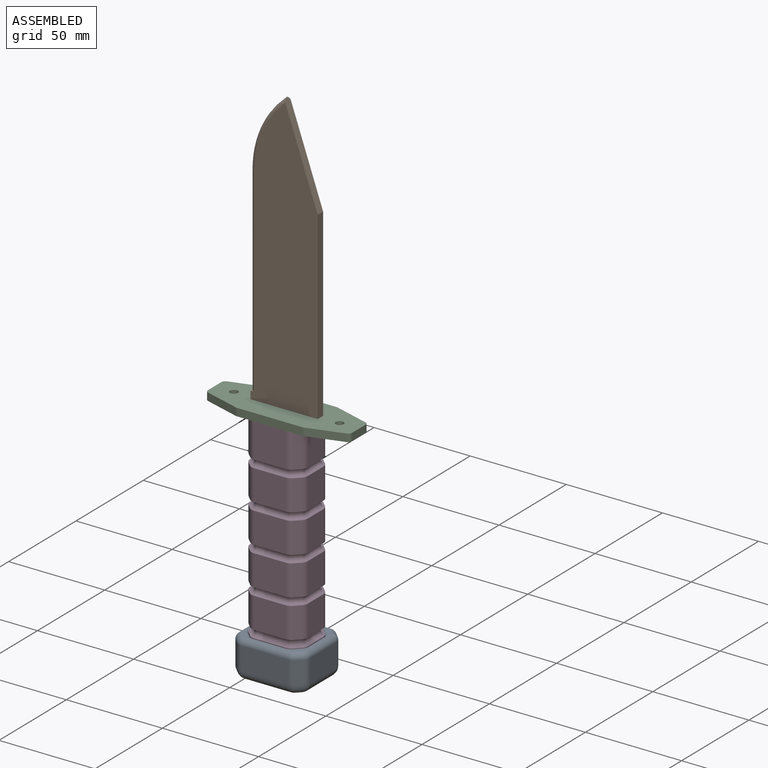
[diagram: assembled view]
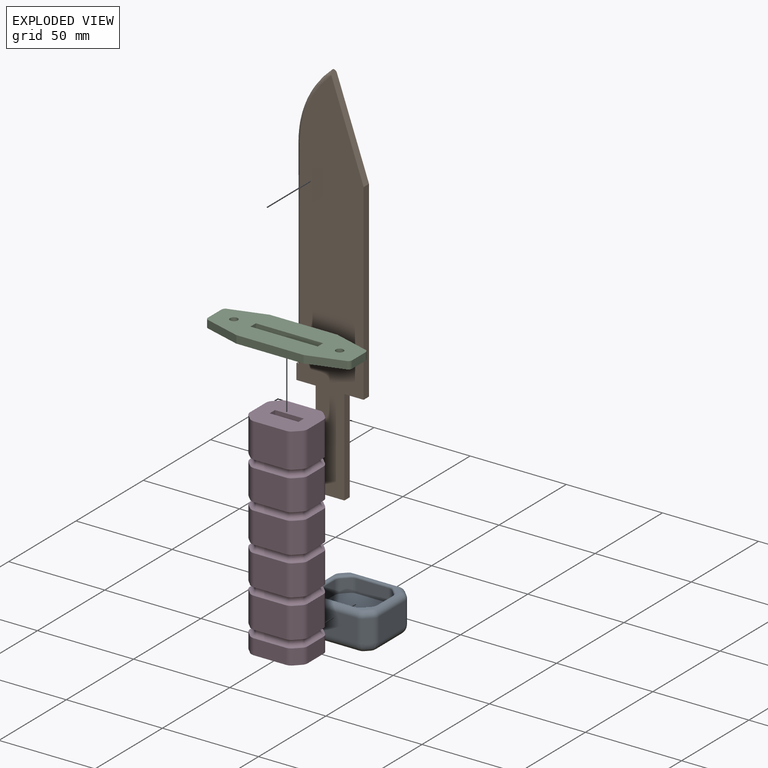
[diagram: exploded view]
GUIDED TOUR — MATED ASSEMBLY (Onshape document cd939ab480e8562e0ee0c96d, AutoMate assembly cd939ab480e8562e0ee0c96d_940a684d5581e0a6e9ad7525_8c6e0dfbdf1c15bdd942c314_default)

This assembly has 4 components, labeled P0..P3 below (a component is one placed occurrence of a part; the same part can appear more than once), held together by 5 mates. A mate is a constraint between two components; its type names the relative motion it leaves free:
  FASTENED — locks the two components together rigidly (no relative motion),
  SLIDER — leaves translation along the listed axis free.
Axis/direction vectors are unit vectors and 'through' points are millimeter coordinates, both in the assembly's world frame.

MATES
  1. FASTENED "Fastened 3": P0 <-> P3, direction (0.000, -1.000, 0.000) through (3.19, 16.42, -46.12) mm
  2. FASTENED "Fastened 1": P1 <-> P3, direction (0.000, -1.000, 0.000) through (25.69, 16.42, 63.88) mm
  3. FASTENED "Fastened 2": P3 <-> P2, direction (-1.000, 0.000, 0.000) through (18.19, 3.92, 63.88) mm
  4. SLIDER "Slider 2": P2 <-> P1, axis (0.000, 0.000, -1.000) through (35.69, 14.42, 63.88) mm
  5. SLIDER "Slider 1": P1 <-> P3, axis (0.000, 0.000, -1.000) through (10.69, 14.42, 38.88) mm

ASSEMBLY ORDER
  1. P3 — the base component [order heuristic]
  2. P0 — core [order heuristic]
  3. P2 [order verified]
  4. P1 [order verified]
Order-tag legend:
  [order verified] — this step's position reverses a verified removal order: the component was checked to insert without passing through the ones already placed.
  [order heuristic] — the first 2 components form the assembly's core: parts whose collision-free extraction could not be verified, listed in mate-graph order.

Of the 4 components, 3 carry the full construction recipe — the FeatureScript program that regenerates the part's solid from scratch; the rest are supplied as boundary geometry only.
Each toured component is shown spotlighted twice — in the assembled view, then in the exploded view, where a leader line traces a displaced component back to its assembled socket (saturated green if recipe-attached, orange if geometry-only; every other component desaturated gray) — followed by its recipe or geometry summary and the mates that hold it.
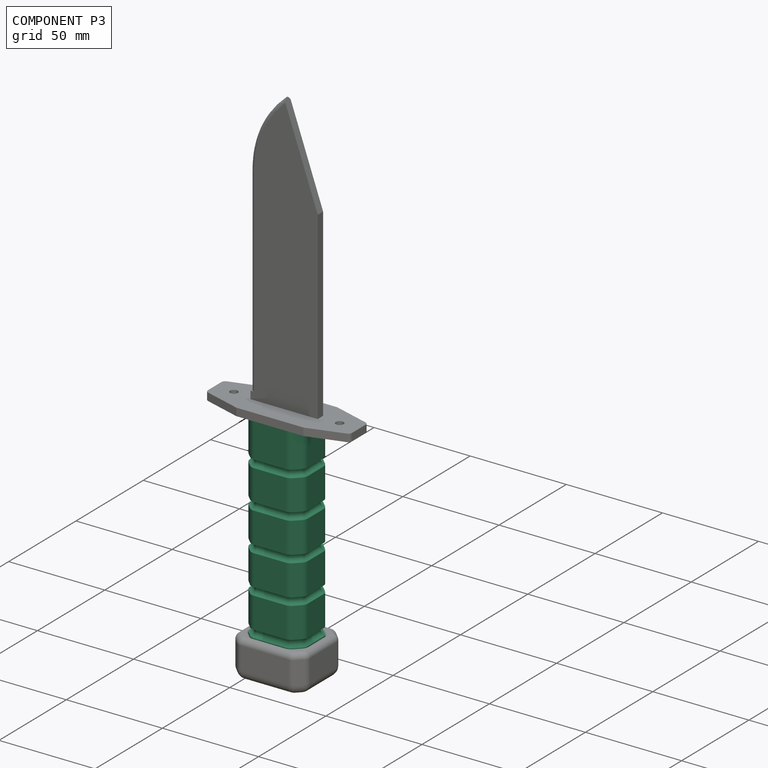
[diagram: component P3 — assembled]
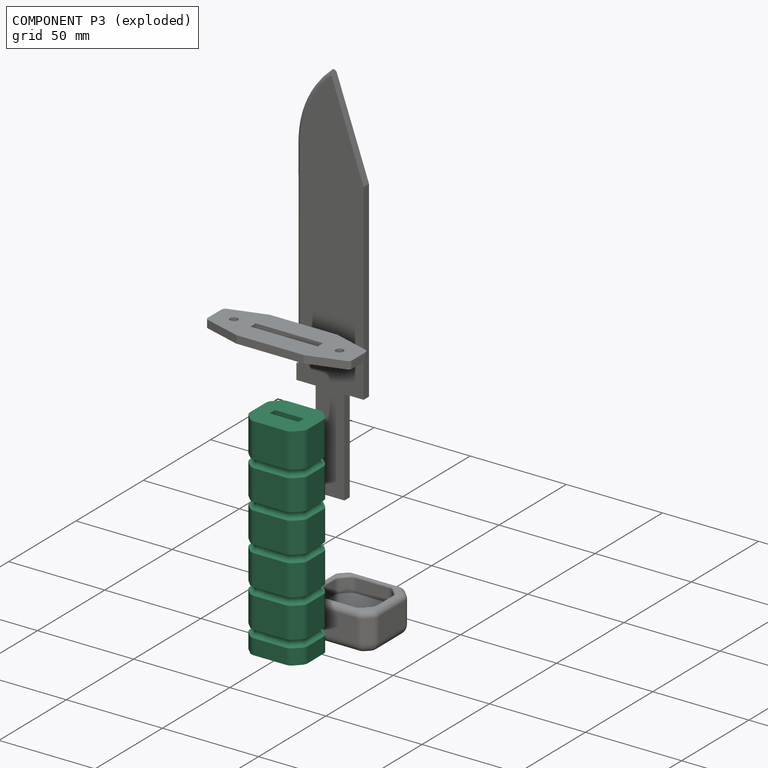
[diagram: component P3 — exploded]
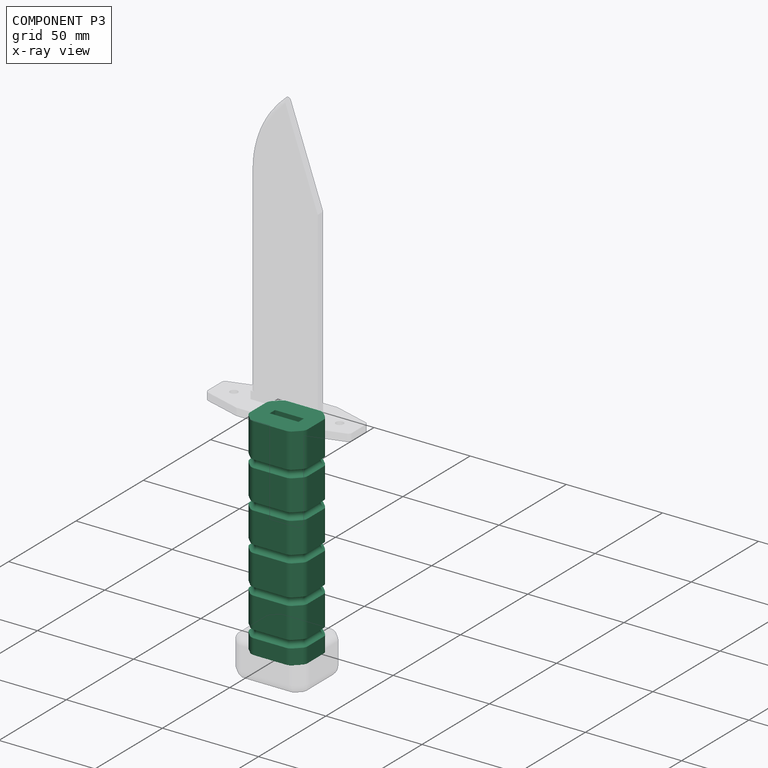
[diagram: component P3 — x-ray view]
COMPONENT P3 — recipe-attached (CADFS 00907075, mesh-verified: the recipe's output STEP matches this component's geometry to below the mesh-comparison resolution (tessellation chordal tolerance ~0.175 mm)).
Held by: FASTENED mate "Fastened 3" to P0; FASTENED mate "Fastened 1" to P1; FASTENED mate "Fastened 2" to P2; SLIDER mate "Slider 1" to P1.
Construction recipe (FeatureScript — the CAD program that rebuilds this solid; sketch coordinates are in the units given by the * unit suffixes, e.g. mm):

FeatureScript 1511;
import(path : "onshape/std/geometry.fs", version : "1511.0");
import(path : "onshape/std/common.fs", version : "1511.0");
const mm = millimeter;
const VERTEX = EntityType.VERTEX;
const EDGE = EntityType.EDGE;
const FACE = EntityType.FACE;
const BODY = EntityType.BODY;
function v(x, y){return vector(x, y);}
function OD(order){return orderDisambiguation(order);}
function OSD(set){return originalSetDisambiguation(set);}
function TD(topology){return topologyDisambiguation(topology);}
function TDD(query){return trueDependencyDisambiguation(query);}
function sQuery(a, b, c) {return sketchEntityQuery(a, b, c);}

annotation { "Feature Type Name" : "Feature", "Feature Type Description" : "" }
export const myFeature = defineFeature(function(context is Context, id is Id, definition is map)
    precondition{}
    {
        {
            var Q0;
            Q0=qCreatedBy(makeId("Top.planeOp"),FACE);
            var sketch = newSketch(context, id + "F0", { "sketchPlane" : qUnion([Q0])});
            skLineSegment(sketch, "E0.bottom", {"start": v(15, 12.5) * mm, "end": v(-15, 12.5) * mm});
            skLineSegment(sketch, "E0.top", {"start": v(15, -12.5) * mm, "end": v(-15, -12.5) * mm});
            skLineSegment(sketch, "E0.left", {"start": v(15, 12.5) * mm, "end": v(15, -12.5) * mm});
            skLineSegment(sketch, "E0.right", {"start": v(-15, 12.5) * mm, "end": v(-15, -12.5) * mm});
            skPoint(sketch, "E0.middle", {"position": v(0, 0) * mm});
            skSolve(sketch);
        }
        {
            var Q0;
            Q0 = qSketchRegion(id + "F0", true);
            extrude(context, id + "F1", {"entities" : qUnion([Q0]), "depth" : 110 * mm, "offsetDistance" : 25 * mm});
        }
        {
            var Q0;
            Q0=makeQuery(id+"F1.opExtrude","SWEPT_EDGE",EDGE,{"disambiguationData":[OSD([sQuery(id+"F0.wireOp",EDGE,"E0.top"),sQuery(id+"F0.wireOp",EDGE,"E0.right")])]});
            var Q1;
            Q1=makeQuery(id+"F1.opExtrude","SWEPT_EDGE",EDGE,{"disambiguationData":[OSD([sQuery(id+"F0.wireOp",EDGE,"E0.bottom"),sQuery(id+"F0.wireOp",EDGE,"E0.right")])]});
            var Q2;
            Q2=makeQuery(id+"F1.opExtrude","SWEPT_EDGE",EDGE,{"disambiguationData":[OSD([sQuery(id+"F0.wireOp",EDGE,"E0.top"),sQuery(id+"F0.wireOp",EDGE,"E0.left")])]});
            var Q3;
            Q3=makeQuery(id+"F1.opExtrude","SWEPT_EDGE",EDGE,{"disambiguationData":[OSD([sQuery(id+"F0.wireOp",EDGE,"E0.bottom"),sQuery(id+"F0.wireOp",EDGE,"E0.left")])]});
            chamfer(context, id + "F2", {"entities" : qUnion([Q0, Q1, Q2, Q3]), "width" : 5 * mm, "tangentPropagation" : true});
        }
        {
            var Q0;
            {var subQ0=sQuery(id+"F0.wireOp",EDGE,"E0.top");Q0=makeQuery(id+"F2.opChamfer","BLEND_EDGE",EDGE,{"blendedFrom":[makeQuery(id+"F1.opExtrude","SWEPT_EDGE",EDGE,{"disambiguationData":[OSD([subQ0,sQuery(id+"F0.wireOp",EDGE,"E0.left")])]}),makeQuery(id+"F1.opExtrude","SWEPT_FACE",FACE,{"disambiguationData":[OSD([subQ0])]})],"blendedInto":[makeQuery(id+"F1.opExtrude","SWEPT_FACE",FACE,{"disambiguationData":[OSD([subQ0])]})]});}
            var Q1;
            {var subQ0=sQuery(id+"F0.wireOp",EDGE,"E0.left");Q1=makeQuery(id+"F2.opChamfer","BLEND_EDGE",EDGE,{"blendedFrom":[makeQuery(id+"F1.opExtrude","SWEPT_EDGE",EDGE,{"disambiguationData":[OSD([sQuery(id+"F0.wireOp",EDGE,"E0.top"),subQ0])]}),makeQuery(id+"F1.opExtrude","SWEPT_FACE",FACE,{"disambiguationData":[OSD([subQ0])]})],"blendedInto":[makeQuery(id+"F1.opExtrude","SWEPT_FACE",FACE,{"disambiguationData":[OSD([subQ0])]})]});}
            var Q2;
            {var subQ0=sQuery(id+"F0.wireOp",EDGE,"E0.top");Q2=makeQuery(id+"F2.opChamfer","BLEND_EDGE",EDGE,{"blendedFrom":[makeQuery(id+"F1.opExtrude","SWEPT_EDGE",EDGE,{"disambiguationData":[OSD([subQ0,sQuery(id+"F0.wireOp",EDGE,"E0.right")])]}),makeQuery(id+"F1.opExtrude","SWEPT_FACE",FACE,{"disambiguationData":[OSD([subQ0])]})],"blendedInto":[makeQuery(id+"F1.opExtrude","SWEPT_FACE",FACE,{"disambiguationData":[OSD([subQ0])]})]});}
            var Q3;
            {var subQ0=sQuery(id+"F0.wireOp",EDGE,"E0.right");Q3=makeQuery(id+"F2.opChamfer","BLEND_EDGE",EDGE,{"blendedFrom":[makeQuery(id+"F1.opExtrude","SWEPT_EDGE",EDGE,{"disambiguationData":[OSD([sQuery(id+"F0.wireOp",EDGE,"E0.top"),subQ0])]}),makeQuery(id+"F1.opExtrude","SWEPT_FACE",FACE,{"disambiguationData":[OSD([subQ0])]})],"blendedInto":[makeQuery(id+"F1.opExtrude","SWEPT_FACE",FACE,{"disambiguationData":[OSD([subQ0])]})]});}
            var Q4;
            {var subQ0=sQuery(id+"F0.wireOp",EDGE,"E0.right");Q4=makeQuery(id+"F2.opChamfer","BLEND_EDGE",EDGE,{"blendedFrom":[makeQuery(id+"F1.opExtrude","SWEPT_EDGE",EDGE,{"disambiguationData":[OSD([sQuery(id+"F0.wireOp",EDGE,"E0.bottom"),subQ0])]}),makeQuery(id+"F1.opExtrude","SWEPT_FACE",FACE,{"disambiguationData":[OSD([subQ0])]})],"blendedInto":[makeQuery(id+"F1.opExtrude","SWEPT_FACE",FACE,{"disambiguationData":[OSD([subQ0])]})]});}
            var Q5;
            {var subQ0=sQuery(id+"F0.wireOp",EDGE,"E0.bottom");Q5=makeQuery(id+"F2.opChamfer","BLEND_EDGE",EDGE,{"blendedFrom":[makeQuery(id+"F1.opExtrude","SWEPT_EDGE",EDGE,{"disambiguationData":[OSD([subQ0,sQuery(id+"F0.wireOp",EDGE,"E0.right")])]}),makeQuery(id+"F1.opExtrude","SWEPT_FACE",FACE,{"disambiguationData":[OSD([subQ0])]})],"blendedInto":[makeQuery(id+"F1.opExtrude","SWEPT_FACE",FACE,{"disambiguationData":[OSD([subQ0])]})]});}
            var Q6;
            {var subQ0=sQuery(id+"F0.wireOp",EDGE,"E0.bottom");Q6=makeQuery(id+"F2.opChamfer","BLEND_EDGE",EDGE,{"blendedFrom":[makeQuery(id+"F1.opExtrude","SWEPT_EDGE",EDGE,{"disambiguationData":[OSD([subQ0,sQuery(id+"F0.wireOp",EDGE,"E0.left")])]}),makeQuery(id+"F1.opExtrude","SWEPT_FACE",FACE,{"disambiguationData":[OSD([subQ0])]})],"blendedInto":[makeQuery(id+"F1.opExtrude","SWEPT_FACE",FACE,{"disambiguationData":[OSD([subQ0])]})]});}
            var Q7;
            {var subQ0=sQuery(id+"F0.wireOp",EDGE,"E0.left");Q7=makeQuery(id+"F2.opChamfer","BLEND_EDGE",EDGE,{"blendedFrom":[makeQuery(id+"F1.opExtrude","SWEPT_EDGE",EDGE,{"disambiguationData":[OSD([sQuery(id+"F0.wireOp",EDGE,"E0.bottom"),subQ0])]}),makeQuery(id+"F1.opExtrude","SWEPT_FACE",FACE,{"disambiguationData":[OSD([subQ0])]})],"blendedInto":[makeQuery(id+"F1.opExtrude","SWEPT_FACE",FACE,{"disambiguationData":[OSD([subQ0])]})]});}
            fillet(context, id + "F3", {"entities" : qUnion([Q0, Q1, Q2, Q3, Q4, Q5, Q6, Q7]), "radius" : 4 * mm, "tangentPropagation" : true, "allowEdgeOverflow" : false});
        }
        {
            var Q0;
            Q0=makeQuery(id+"F1.opExtrude","CAP_FACE",FACE,{"disambiguationData":[OSD([sQuery(id+"F0.wireOp",EDGE,"E0.bottom"),sQuery(id+"F0.wireOp",EDGE,"E0.top"),sQuery(id+"F0.wireOp",EDGE,"E0.left"),sQuery(id+"F0.wireOp",EDGE,"E0.right")])],"isStart":false});
            var sketch = newSketch(context, id + "F4", { "sketchPlane" : qUnion([Q0])});
            skLineSegment(sketch, "E1.bottom", {"start": v(7.5, 2) * mm, "end": v(-7.5, 2) * mm});
            skLineSegment(sketch, "E1.top", {"start": v(7.5, -2) * mm, "end": v(-7.5, -2) * mm});
            skLineSegment(sketch, "E1.left", {"start": v(7.5, 2) * mm, "end": v(7.5, -2) * mm});
            skLineSegment(sketch, "E1.right", {"start": v(-7.5, 2) * mm, "end": v(-7.5, -2) * mm});
            skPoint(sketch, "E1.middle", {"position": v(0, 0) * mm});
            skSolve(sketch);
        }
        {
            var Q0;
            Q0 = qSketchRegion(id + "F4", true);
            extrude(context, id + "F5", {"entities" : qUnion([Q0]), "operationType" : NewBodyOperationType.REMOVE, "oppositeDirection" : true, "depth" : 50 * mm, "offsetDistance" : 25 * mm});
        }
        {
            var Q0;
            Q0=makeQuery(id+"F1.opExtrude","CAP_FACE",FACE,{"disambiguationData":[OSD([sQuery(id+"F0.wireOp",EDGE,"E0.bottom"),sQuery(id+"F0.wireOp",EDGE,"E0.top"),sQuery(id+"F0.wireOp",EDGE,"E0.left"),sQuery(id+"F0.wireOp",EDGE,"E0.right")])],"isStart":false});
            cPlane(context, id + "F6", {"entities" : qUnion([Q0]), "cplaneType" : CPlaneType.OFFSET, "offset" : 20 * mm, "oppositeDirection" : true, "width" : 150 * mm, "height" : 150 * mm});
        }
        {
            var Q0;
            Q0=qCreatedBy(id+"F6.planeOp",FACE);
            cPlane(context, id + "F7", {"entities" : qUnion([Q0]), "cplaneType" : CPlaneType.OFFSET, "offset" : 20 * mm, "oppositeDirection" : true, "width" : 150 * mm, "height" : 150 * mm});
        }
        {
            var Q0;
            Q0=qCreatedBy(id+"F7.planeOp",FACE);
            cPlane(context, id + "F8", {"entities" : qUnion([Q0]), "cplaneType" : CPlaneType.OFFSET, "offset" : 20 * mm, "oppositeDirection" : true, "width" : 150 * mm, "height" : 150 * mm});
        }
        {
            var Q0;
            Q0=qCreatedBy(id+"F8.planeOp",FACE);
            cPlane(context, id + "F9", {"entities" : qUnion([Q0]), "cplaneType" : CPlaneType.OFFSET, "offset" : 20 * mm, "oppositeDirection" : true, "width" : 150 * mm, "height" : 150 * mm});
        }
        {
            var Q0;
            Q0=qCreatedBy(id+"F9.planeOp",FACE);
            cPlane(context, id + "F10", {"entities" : qUnion([Q0]), "cplaneType" : CPlaneType.OFFSET, "offset" : 20 * mm, "oppositeDirection" : true, "width" : 150 * mm, "height" : 150 * mm});
        }
        {
            var Q0;
            Q0=qCreatedBy(id+"F6.planeOp",FACE);
            var sketch = newSketch(context, id + "F11", { "sketchPlane" : qUnion([Q0])});
            skLineSegment(sketch, "E2.0.0", {"start": v(-11.17, 11.33) * mm, "end": v(-13.83, 8.67) * mm});
            skArc(sketch, "E2.0.1", {"start": v(-13.83, 8.67) * mm, "mid": v(-14.7, 7.37) * mm, "end": v(-15, 5.84) * mm});
            skLineSegment(sketch, "E2.0.2", {"start": v(-15, 5.84) * mm, "end": v(-15, -5.84) * mm});
            skArc(sketch, "E2.0.3", {"start": v(-15, -5.84) * mm, "mid": v(-14.7, -7.37) * mm, "end": v(-13.83, -8.67) * mm});
            skLineSegment(sketch, "E2.0.4", {"start": v(-13.83, -8.67) * mm, "end": v(-11.17, -11.33) * mm});
            skArc(sketch, "E2.0.5", {"start": v(-11.17, -11.33) * mm, "mid": v(-9.87, -12.2) * mm, "end": v(-8.34, -12.5) * mm});
            skLineSegment(sketch, "E2.0.6", {"start": v(-8.34, -12.5) * mm, "end": v(8.34, -12.5) * mm});
            skArc(sketch, "E2.0.7", {"start": v(8.34, -12.5) * mm, "mid": v(9.87, -12.2) * mm, "end": v(11.17, -11.33) * mm});
            skLineSegment(sketch, "E2.0.8", {"start": v(11.17, -11.33) * mm, "end": v(13.83, -8.67) * mm});
            skArc(sketch, "E2.0.9", {"start": v(13.83, -8.67) * mm, "mid": v(14.7, -7.37) * mm, "end": v(15, -5.84) * mm});
            skLineSegment(sketch, "E2.0.10", {"start": v(15, -5.84) * mm, "end": v(15, 5.84) * mm});
            skArc(sketch, "E2.0.11", {"start": v(15, 5.84) * mm, "mid": v(14.7, 7.37) * mm, "end": v(13.83, 8.67) * mm});
            skLineSegment(sketch, "E2.0.12", {"start": v(13.83, 8.67) * mm, "end": v(11.17, 11.33) * mm});
            skArc(sketch, "E2.0.13", {"start": v(11.17, 11.33) * mm, "mid": v(9.87, 12.2) * mm, "end": v(8.34, 12.5) * mm});
            skLineSegment(sketch, "E2.0.14", {"start": v(8.34, 12.5) * mm, "end": v(-8.34, 12.5) * mm});
            skArc(sketch, "E2.0.15", {"start": v(-8.34, 12.5) * mm, "mid": v(-9.87, 12.2) * mm, "end": v(-11.17, 11.33) * mm});
            skSolve(sketch);
        }
        {
            var Q0;
            Q0=qCreatedBy(id+"F7.planeOp",FACE);
            var sketch = newSketch(context, id + "F12", { "sketchPlane" : qUnion([Q0])});
            skLineSegment(sketch, "E3.0.0", {"start": v(-11.17, 11.33) * mm, "end": v(-13.83, 8.67) * mm});
            skArc(sketch, "E3.0.1", {"start": v(-13.83, 8.67) * mm, "mid": v(-14.7, 7.37) * mm, "end": v(-15, 5.84) * mm});
            skLineSegment(sketch, "E3.0.2", {"start": v(-15, 5.84) * mm, "end": v(-15, -5.84) * mm});
            skArc(sketch, "E3.0.3", {"start": v(-15, -5.84) * mm, "mid": v(-14.7, -7.37) * mm, "end": v(-13.83, -8.67) * mm});
            skLineSegment(sketch, "E3.0.4", {"start": v(-13.83, -8.67) * mm, "end": v(-11.17, -11.33) * mm});
            skArc(sketch, "E3.0.5", {"start": v(-11.17, -11.33) * mm, "mid": v(-9.87, -12.2) * mm, "end": v(-8.34, -12.5) * mm});
            skLineSegment(sketch, "E3.0.6", {"start": v(-8.34, -12.5) * mm, "end": v(8.34, -12.5) * mm});
            skArc(sketch, "E3.0.7", {"start": v(8.34, -12.5) * mm, "mid": v(9.87, -12.2) * mm, "end": v(11.17, -11.33) * mm});
            skLineSegment(sketch, "E3.0.8", {"start": v(11.17, -11.33) * mm, "end": v(13.83, -8.67) * mm});
            skArc(sketch, "E3.0.9", {"start": v(13.83, -8.67) * mm, "mid": v(14.7, -7.37) * mm, "end": v(15, -5.84) * mm});
            skLineSegment(sketch, "E3.0.10", {"start": v(15, -5.84) * mm, "end": v(15, 5.84) * mm});
            skArc(sketch, "E3.0.11", {"start": v(15, 5.84) * mm, "mid": v(14.7, 7.37) * mm, "end": v(13.83, 8.67) * mm});
            skLineSegment(sketch, "E3.0.12", {"start": v(13.83, 8.67) * mm, "end": v(11.17, 11.33) * mm});
            skArc(sketch, "E3.0.13", {"start": v(11.17, 11.33) * mm, "mid": v(9.87, 12.2) * mm, "end": v(8.34, 12.5) * mm});
            skLineSegment(sketch, "E3.0.14", {"start": v(8.34, 12.5) * mm, "end": v(-8.34, 12.5) * mm});
            skArc(sketch, "E3.0.15", {"start": v(-8.34, 12.5) * mm, "mid": v(-9.87, 12.2) * mm, "end": v(-11.17, 11.33) * mm});
            skSolve(sketch);
        }
        {
            var Q0;
            Q0=qCreatedBy(id+"F8.planeOp",FACE);
            var sketch = newSketch(context, id + "F13", { "sketchPlane" : qUnion([Q0])});
            skLineSegment(sketch, "E4.0.0", {"start": v(-11.17, 11.33) * mm, "end": v(-13.83, 8.67) * mm});
            skArc(sketch, "E4.0.1", {"start": v(-13.83, 8.67) * mm, "mid": v(-14.7, 7.37) * mm, "end": v(-15, 5.84) * mm});
            skLineSegment(sketch, "E4.0.2", {"start": v(-15, 5.84) * mm, "end": v(-15, -5.84) * mm});
            skArc(sketch, "E4.0.3", {"start": v(-15, -5.84) * mm, "mid": v(-14.7, -7.37) * mm, "end": v(-13.83, -8.67) * mm});
            skLineSegment(sketch, "E4.0.4", {"start": v(-13.83, -8.67) * mm, "end": v(-11.17, -11.33) * mm});
            skArc(sketch, "E4.0.5", {"start": v(-11.17, -11.33) * mm, "mid": v(-9.87, -12.2) * mm, "end": v(-8.34, -12.5) * mm});
            skLineSegment(sketch, "E4.0.6", {"start": v(-8.34, -12.5) * mm, "end": v(8.34, -12.5) * mm});
            skArc(sketch, "E4.0.7", {"start": v(8.34, -12.5) * mm, "mid": v(9.87, -12.2) * mm, "end": v(11.17, -11.33) * mm});
            skLineSegment(sketch, "E4.0.8", {"start": v(11.17, -11.33) * mm, "end": v(13.83, -8.67) * mm});
            skArc(sketch, "E4.0.9", {"start": v(13.83, -8.67) * mm, "mid": v(14.7, -7.37) * mm, "end": v(15, -5.84) * mm});
            skLineSegment(sketch, "E4.0.10", {"start": v(15, -5.84) * mm, "end": v(15, 5.84) * mm});
            skArc(sketch, "E4.0.11", {"start": v(15, 5.84) * mm, "mid": v(14.7, 7.37) * mm, "end": v(13.83, 8.67) * mm});
            skLineSegment(sketch, "E4.0.12", {"start": v(13.83, 8.67) * mm, "end": v(11.17, 11.33) * mm});
            skArc(sketch, "E4.0.13", {"start": v(11.17, 11.33) * mm, "mid": v(9.87, 12.2) * mm, "end": v(8.34, 12.5) * mm});
            skLineSegment(sketch, "E4.0.14", {"start": v(8.34, 12.5) * mm, "end": v(-8.34, 12.5) * mm});
            skArc(sketch, "E4.0.15", {"start": v(-8.34, 12.5) * mm, "mid": v(-9.87, 12.2) * mm, "end": v(-11.17, 11.33) * mm});
            skSolve(sketch);
        }
        {
            var Q0;
            Q0=qCreatedBy(id+"F9.planeOp",FACE);
            var sketch = newSketch(context, id + "F14", { "sketchPlane" : qUnion([Q0])});
            skLineSegment(sketch, "E5.0.0", {"start": v(-11.17, 11.33) * mm, "end": v(-13.83, 8.67) * mm});
            skArc(sketch, "E5.0.1", {"start": v(-13.83, 8.67) * mm, "mid": v(-14.7, 7.37) * mm, "end": v(-15, 5.84) * mm});
            skLineSegment(sketch, "E5.0.2", {"start": v(-15, 5.84) * mm, "end": v(-15, -5.84) * mm});
            skArc(sketch, "E5.0.3", {"start": v(-15, -5.84) * mm, "mid": v(-14.7, -7.37) * mm, "end": v(-13.83, -8.67) * mm});
            skLineSegment(sketch, "E5.0.4", {"start": v(-13.83, -8.67) * mm, "end": v(-11.17, -11.33) * mm});
            skArc(sketch, "E5.0.5", {"start": v(-11.17, -11.33) * mm, "mid": v(-9.87, -12.2) * mm, "end": v(-8.34, -12.5) * mm});
            skLineSegment(sketch, "E5.0.6", {"start": v(-8.34, -12.5) * mm, "end": v(8.34, -12.5) * mm});
            skArc(sketch, "E5.0.7", {"start": v(8.34, -12.5) * mm, "mid": v(9.87, -12.2) * mm, "end": v(11.17, -11.33) * mm});
            skLineSegment(sketch, "E5.0.8", {"start": v(11.17, -11.33) * mm, "end": v(13.83, -8.67) * mm});
            skArc(sketch, "E5.0.9", {"start": v(13.83, -8.67) * mm, "mid": v(14.7, -7.37) * mm, "end": v(15, -5.84) * mm});
            skLineSegment(sketch, "E5.0.10", {"start": v(15, -5.84) * mm, "end": v(15, 5.84) * mm});
            skArc(sketch, "E5.0.11", {"start": v(15, 5.84) * mm, "mid": v(14.7, 7.37) * mm, "end": v(13.83, 8.67) * mm});
            skLineSegment(sketch, "E5.0.12", {"start": v(13.83, 8.67) * mm, "end": v(11.17, 11.33) * mm});
            skArc(sketch, "E5.0.13", {"start": v(11.17, 11.33) * mm, "mid": v(9.87, 12.2) * mm, "end": v(8.34, 12.5) * mm});
            skLineSegment(sketch, "E5.0.14", {"start": v(8.34, 12.5) * mm, "end": v(-8.34, 12.5) * mm});
            skArc(sketch, "E5.0.15", {"start": v(-8.34, 12.5) * mm, "mid": v(-9.87, 12.2) * mm, "end": v(-11.17, 11.33) * mm});
            skSolve(sketch);
        }
        {
            var Q0;
            Q0=qCreatedBy(id+"F10.planeOp",FACE);
            var sketch = newSketch(context, id + "F15", { "sketchPlane" : qUnion([Q0])});
            skLineSegment(sketch, "E6.0.0", {"start": v(-11.17, 11.33) * mm, "end": v(-13.83, 8.67) * mm});
            skArc(sketch, "E6.0.1", {"start": v(-13.83, 8.67) * mm, "mid": v(-14.7, 7.37) * mm, "end": v(-15, 5.84) * mm});
            skLineSegment(sketch, "E6.0.2", {"start": v(-15, 5.84) * mm, "end": v(-15, -5.84) * mm});
            skArc(sketch, "E6.0.3", {"start": v(-15, -5.84) * mm, "mid": v(-14.7, -7.37) * mm, "end": v(-13.83, -8.67) * mm});
            skLineSegment(sketch, "E6.0.4", {"start": v(-13.83, -8.67) * mm, "end": v(-11.17, -11.33) * mm});
            skArc(sketch, "E6.0.5", {"start": v(-11.17, -11.33) * mm, "mid": v(-9.87, -12.2) * mm, "end": v(-8.34, -12.5) * mm});
            skLineSegment(sketch, "E6.0.6", {"start": v(-8.34, -12.5) * mm, "end": v(8.34, -12.5) * mm});
            skArc(sketch, "E6.0.7", {"start": v(8.34, -12.5) * mm, "mid": v(9.87, -12.2) * mm, "end": v(11.17, -11.33) * mm});
            skLineSegment(sketch, "E6.0.8", {"start": v(11.17, -11.33) * mm, "end": v(13.83, -8.67) * mm});
            skArc(sketch, "E6.0.9", {"start": v(13.83, -8.67) * mm, "mid": v(14.7, -7.37) * mm, "end": v(15, -5.84) * mm});
            skLineSegment(sketch, "E6.0.10", {"start": v(15, -5.84) * mm, "end": v(15, 5.84) * mm});
            skArc(sketch, "E6.0.11", {"start": v(15, 5.84) * mm, "mid": v(14.7, 7.37) * mm, "end": v(13.83, 8.67) * mm});
            skLineSegment(sketch, "E6.0.12", {"start": v(13.83, 8.67) * mm, "end": v(11.17, 11.33) * mm});
            skArc(sketch, "E6.0.13", {"start": v(11.17, 11.33) * mm, "mid": v(9.87, 12.2) * mm, "end": v(8.34, 12.5) * mm});
            skLineSegment(sketch, "E6.0.14", {"start": v(8.34, 12.5) * mm, "end": v(-8.34, 12.5) * mm});
            skArc(sketch, "E6.0.15", {"start": v(-8.34, 12.5) * mm, "mid": v(-9.87, 12.2) * mm, "end": v(-11.17, 11.33) * mm});
            skSolve(sketch);
        }
        {
            var Q0;
            Q0=qCreatedBy(makeId("Front.planeOp"),FACE);
            var sketch = newSketch(context, id + "F16", { "sketchPlane" : qUnion([Q0])});
            skCircle(sketch, "E7", {"center": v(-15, 90) * mm, "radius": 2 * mm});
            skCircle(sketch, "E8", {"center": v(-15, 70) * mm, "radius": 2 * mm});
            skCircle(sketch, "E9", {"center": v(-15, 50) * mm, "radius": 2 * mm});
            skCircle(sketch, "E10", {"center": v(-15, 30) * mm, "radius": 2 * mm});
            skCircle(sketch, "E11", {"center": v(-15, 10) * mm, "radius": 2 * mm});
            skSolve(sketch);
        }
        {
            var Q0;
            Q0 = qSketchRegion(id + "F16", true);
            var Q1;
            Q1 = qConstructionFilter(qBodyType(qCreatedBy(id + "F11" ,EDGE), BodyType.WIRE), ConstructionObject.NO);
            sweep(context, id + "F17", {"operationType" : NewBodyOperationType.REMOVE, "profiles" : qUnion([Q0]), "path" : qUnion([Q1])});
        }
    });
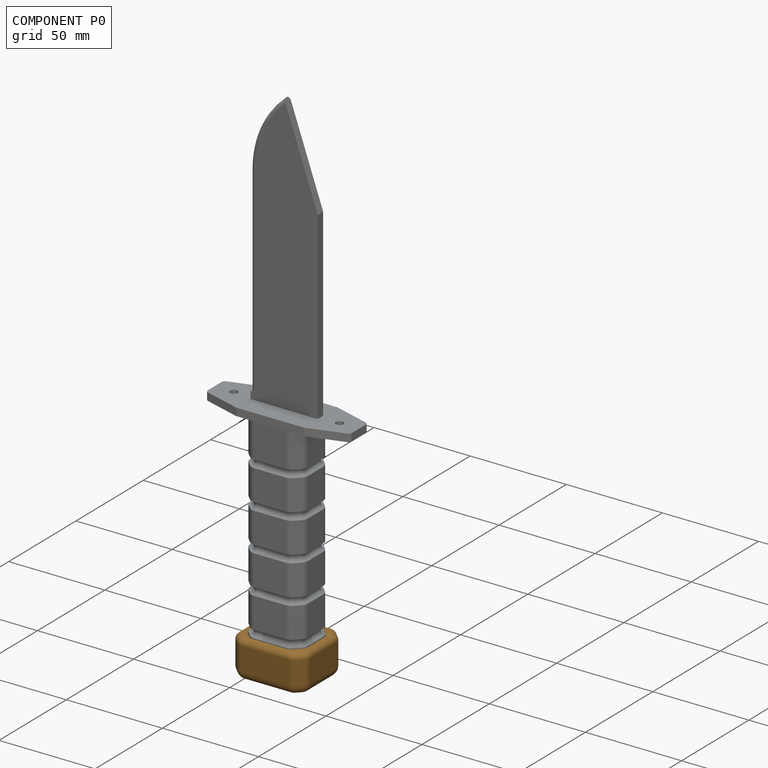
[diagram: component P0 — assembled]
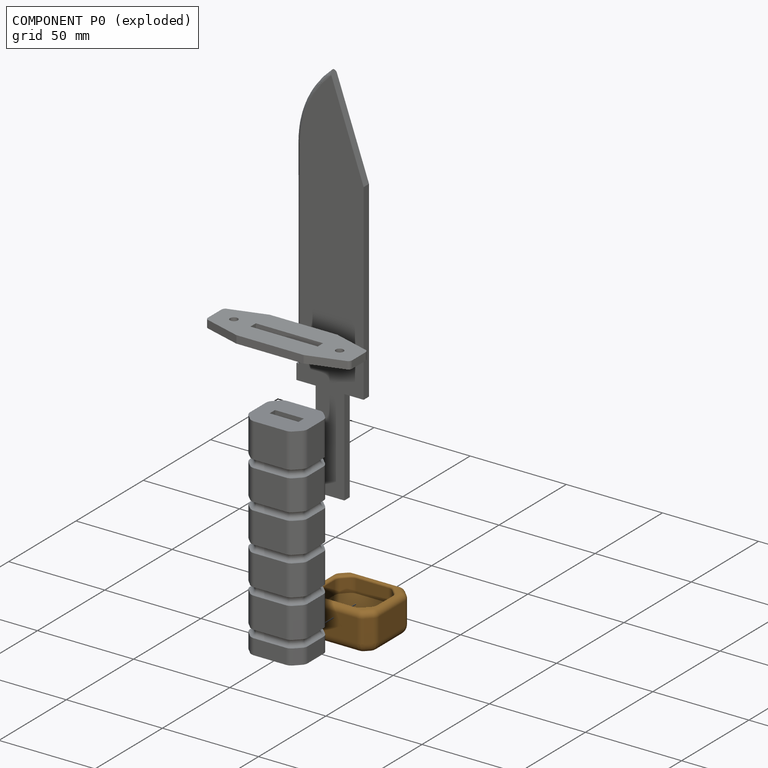
[diagram: component P0 — exploded]
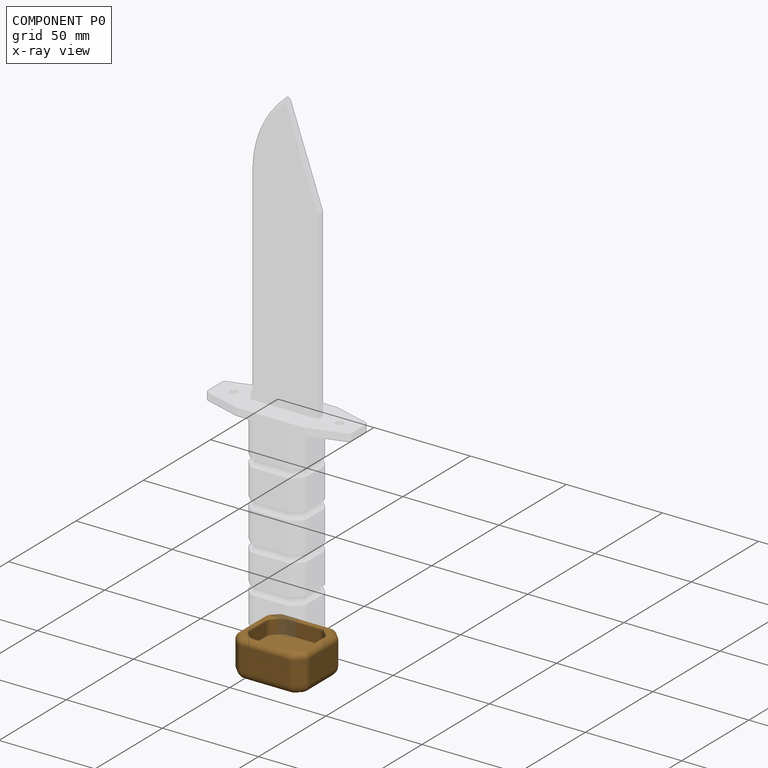
[diagram: component P0 — x-ray view]
COMPONENT P0 — geometry summary (no construction recipe available for this part):
  bounding box: 38.0 x 33.0 x 20.0 mm
  B-rep topology: 1 solid, 86 faces, 384 edges
  volume: 17530 mm^3 (70% of its bounding box)
  symmetry: 2-fold rotationally symmetric about the z axis; mirror-symmetric across its x mid-plane, y mid-plane
Held by: FASTENED mate "Fastened 3" to P3.
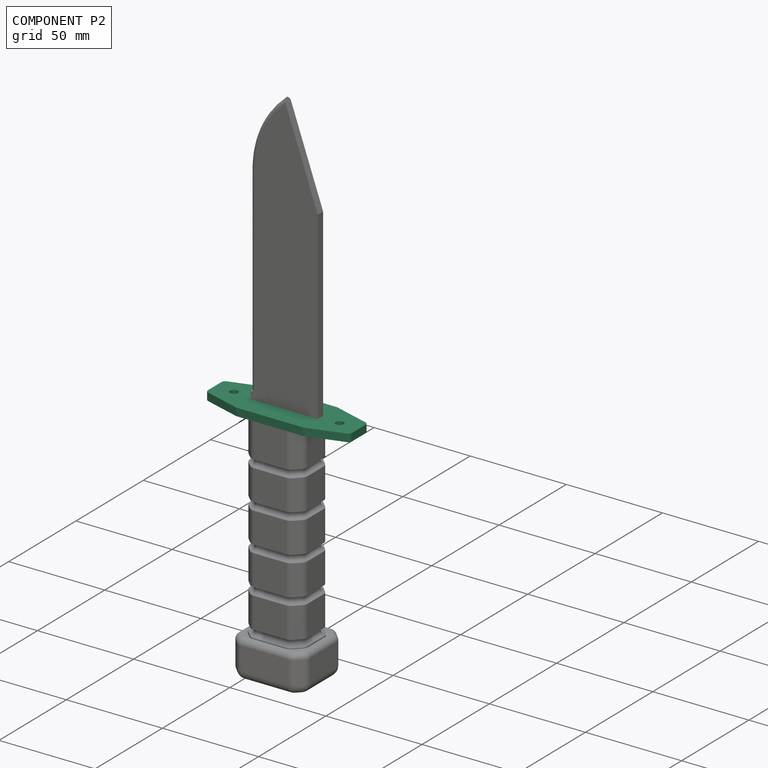
[diagram: component P2 — assembled]
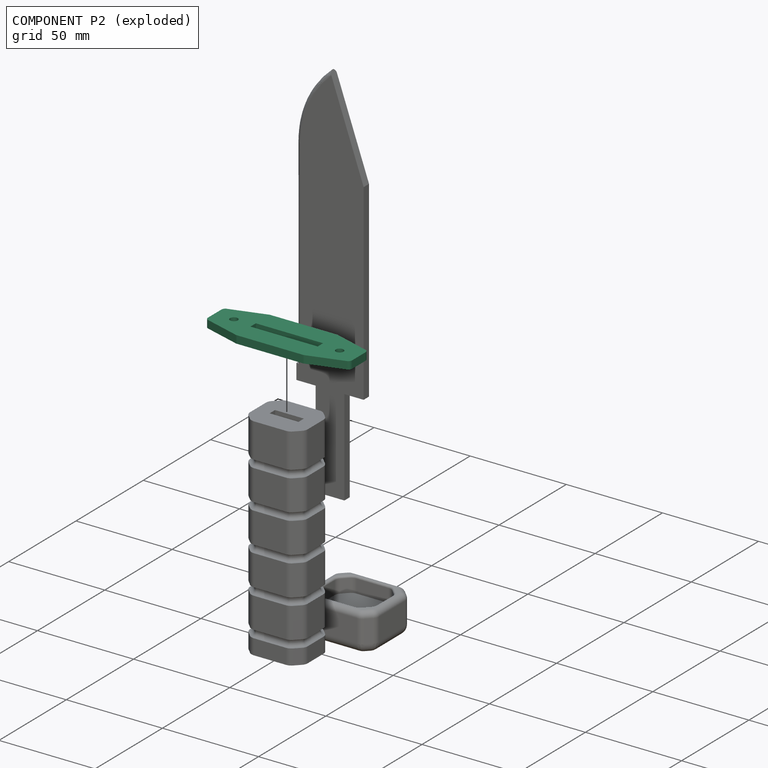
[diagram: component P2 — exploded]
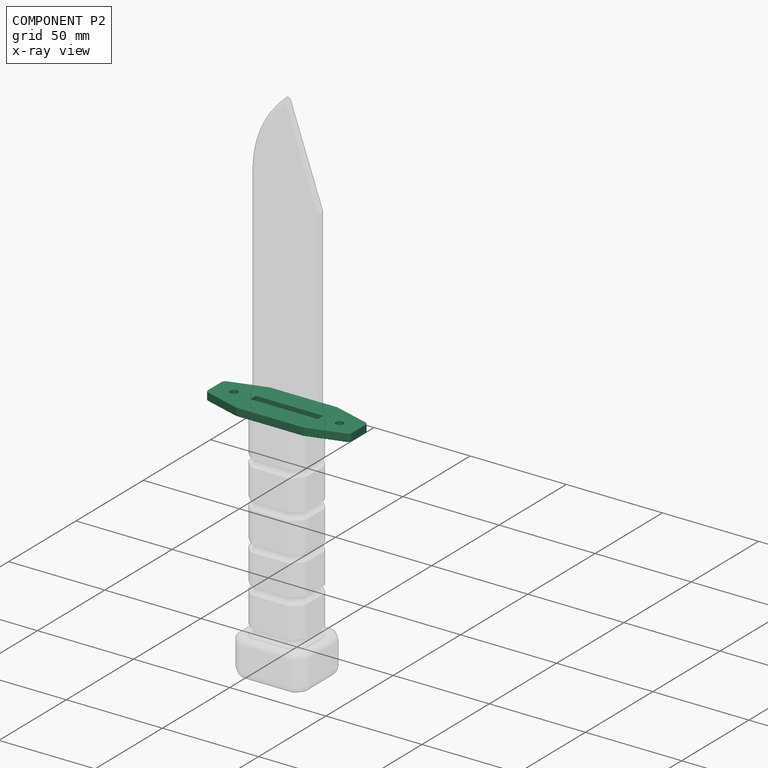
[diagram: component P2 — x-ray view]
COMPONENT P2 — recipe-attached (CADFS 00907074, mesh-verified: the recipe's output STEP matches this component's geometry to below the mesh-comparison resolution (tessellation chordal tolerance ~0.119 mm)).
Held by: FASTENED mate "Fastened 2" to P3; SLIDER mate "Slider 2" to P1.
Construction recipe (FeatureScript — the CAD program that rebuilds this solid; sketch coordinates are in the units given by the * unit suffixes, e.g. mm):

FeatureScript 1511;
import(path : "onshape/std/geometry.fs", version : "1511.0");
import(path : "onshape/std/common.fs", version : "1511.0");
const mm = millimeter;
const VERTEX = EntityType.VERTEX;
const EDGE = EntityType.EDGE;
const FACE = EntityType.FACE;
const BODY = EntityType.BODY;
function v(x, y){return vector(x, y);}
function OD(order){return orderDisambiguation(order);}
function OSD(set){return originalSetDisambiguation(set);}
function TD(topology){return topologyDisambiguation(topology);}
function TDD(query){return trueDependencyDisambiguation(query);}
function sQuery(a, b, c) {return sketchEntityQuery(a, b, c);}

annotation { "Feature Type Name" : "Feature", "Feature Type Description" : "" }
export const myFeature = defineFeature(function(context is Context, id is Id, definition is map)
    precondition{}
    {
        {
            var Q0;
            Q0=qCreatedBy(makeId("Top.planeOp"),FACE);
            var sketch = newSketch(context, id + "F0", { "sketchPlane" : qUnion([Q0])});
            skLineSegment(sketch, "E0.bottom", {"start": v(0, 12.5) * mm, "end": v(-17.5, 12.5) * mm});
            skLineSegment(sketch, "E0.top", {"start": v(0, -12.5) * mm, "end": v(-17.5, -12.5) * mm});
            skLineSegment(sketch, "E0.right", {"start": v(-37.5, 6.5) * mm, "end": v(-37.5, -6.5) * mm});
            skPoint(sketch, "E0.middle", {"position": v(0, 0) * mm});
            skLineSegment(sketch, "E1", {"start": v(-37.5, 6.5) * mm, "end": v(-17.5, 12.5) * mm});
            skLineSegment(sketch, "E2", {"start": v(-37.5, -6.5) * mm, "end": v(-17.5, -12.5) * mm});
            skLineSegment(sketch, "E3", {"start": v(0, 12.5) * mm, "end": v(0, -12.5) * mm, "construction": true});
            skPoint(sketch, "E4.orphan", {"position": v(-37.5, 12.5) * mm});
            skPoint(sketch, "E5.orphan", {"position": v(-37.5, -12.5) * mm});
            skPoint(sketch, "E0.left.end.orphan", {"position": v(37.5, -12.5) * mm});
            skPoint(sketch, "E0.left.start.orphan", {"position": v(37.5, 12.5) * mm});
            skLineSegment(sketch, "E6.MirrorCS", {"start": v(0, 12.5) * mm, "end": v(17.5, 12.5) * mm});
            skLineSegment(sketch, "E7.MirrorCS", {"start": v(37.5, 6.5) * mm, "end": v(17.5, 12.5) * mm});
            skLineSegment(sketch, "E8.MirrorCS", {"start": v(37.5, 6.5) * mm, "end": v(37.5, -6.5) * mm});
            skLineSegment(sketch, "E9.MirrorCS", {"start": v(37.5, -6.5) * mm, "end": v(17.5, -12.5) * mm});
            skLineSegment(sketch, "E10.MirrorCS", {"start": v(0, -12.5) * mm, "end": v(17.5, -12.5) * mm});
            skLineSegment(sketch, "E11.bottom", {"start": v(17.5, 2) * mm, "end": v(-17.5, 2) * mm});
            skLineSegment(sketch, "E11.top", {"start": v(17.5, -2) * mm, "end": v(-17.5, -2) * mm});
            skLineSegment(sketch, "E11.left", {"start": v(17.5, 2) * mm, "end": v(17.5, -2) * mm});
            skLineSegment(sketch, "E11.right", {"start": v(-17.5, 2) * mm, "end": v(-17.5, -2) * mm});
            skCircle(sketch, "E12", {"center": v(-27.5, 0) * mm, "radius": 2 * mm});
            skCircle(sketch, "E13", {"center": v(27.5, 0) * mm, "radius": 2 * mm});
            skLineSegment(sketch, "E14", {"start": v(-37.5, 0) * mm, "end": v(37.5, 0) * mm, "construction": true});
            skSolve(sketch);
        }
        {
            var Q0;
            Q0 = qSketchRegion(id + "F0", true);
            extrude(context, id + "F1", {"entities" : qUnion([Q0]), "depth" : 4 * mm, "offsetDistance" : 25 * mm});
        }
        {
            var Q0;
            Q0=makeQuery(id+"F1.opExtrude","SWEPT_EDGE",EDGE,{"disambiguationData":[OSD([sQuery(id+"F0.wireOp",EDGE,"E0.right"),sQuery(id+"F0.wireOp",EDGE,"E2")])]});
            var Q1;
            Q1=makeQuery(id+"F1.opExtrude","SWEPT_EDGE",EDGE,{"disambiguationData":[OSD([sQuery(id+"F0.wireOp",EDGE,"E8.MirrorCS"),sQuery(id+"F0.wireOp",EDGE,"E9.MirrorCS")])]});
            var Q2;
            Q2=makeQuery(id+"F1.opExtrude","SWEPT_EDGE",EDGE,{"disambiguationData":[OSD([sQuery(id+"F0.wireOp",EDGE,"E7.MirrorCS"),sQuery(id+"F0.wireOp",EDGE,"E8.MirrorCS")])]});
            var Q3;
            Q3=makeQuery(id+"F1.opExtrude","SWEPT_EDGE",EDGE,{"disambiguationData":[OSD([sQuery(id+"F0.wireOp",EDGE,"E0.right"),sQuery(id+"F0.wireOp",EDGE,"E1")])]});
            fillet(context, id + "F2", {"entities" : qUnion([Q0, Q1, Q2, Q3]), "radius" : 2 * mm, "tangentPropagation" : true, "allowEdgeOverflow" : false});
        }
    });
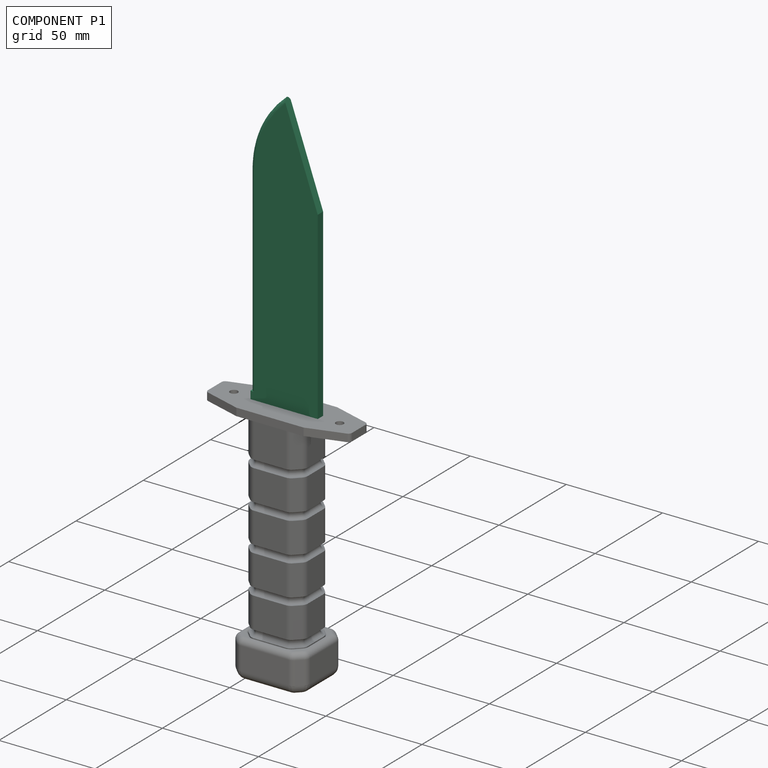
[diagram: component P1 — assembled]
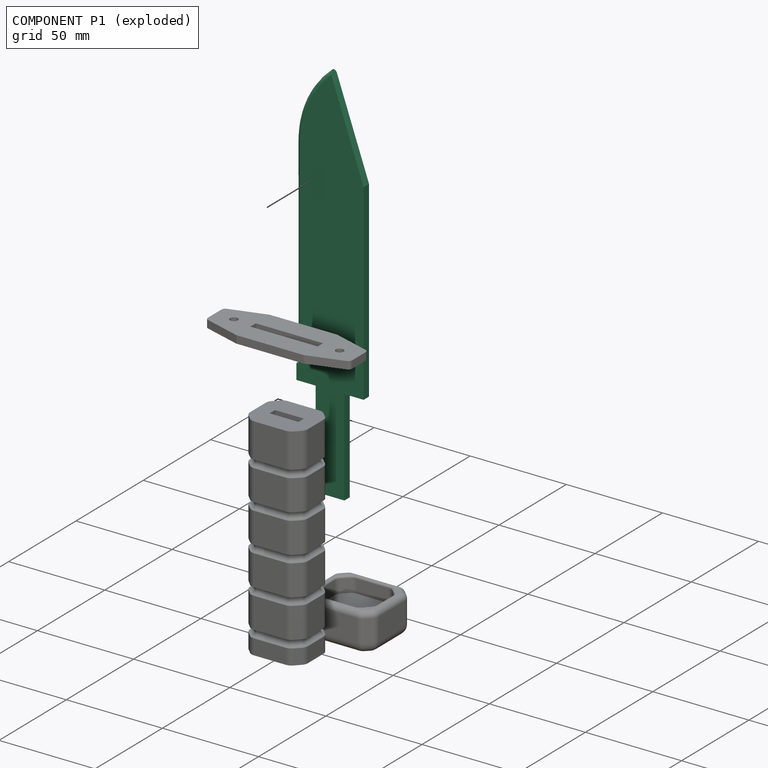
[diagram: component P1 — exploded]
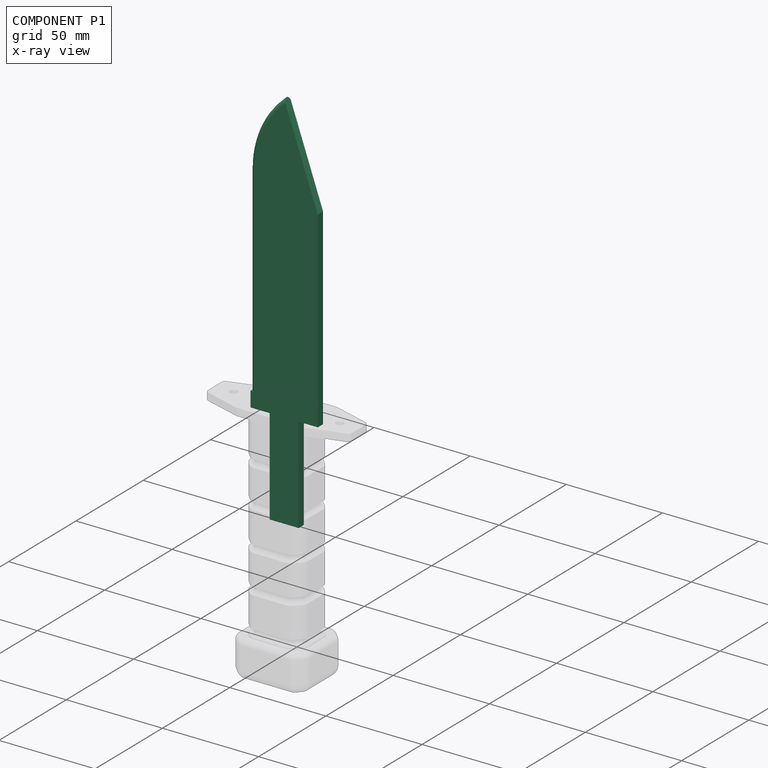
[diagram: component P1 — x-ray view]
COMPONENT P1 — recipe-attached (CADFS 00907073, mesh-verified: the recipe's output STEP matches this component's geometry to below the mesh-comparison resolution (tessellation chordal tolerance ~0.305 mm)).
Held by: FASTENED mate "Fastened 1" to P3; SLIDER mate "Slider 2" to P2; SLIDER mate "Slider 1" to P3.
Construction recipe (FeatureScript — the CAD program that rebuilds this solid; sketch coordinates are in the units given by the * unit suffixes, e.g. mm):

FeatureScript 1511;
import(path : "onshape/std/geometry.fs", version : "1511.0");
import(path : "onshape/std/common.fs", version : "1511.0");
const mm = millimeter;
const VERTEX = EntityType.VERTEX;
const EDGE = EntityType.EDGE;
const FACE = EntityType.FACE;
const BODY = EntityType.BODY;
function v(x, y){return vector(x, y);}
function OD(order){return orderDisambiguation(order);}
function OSD(set){return originalSetDisambiguation(set);}
function TD(topology){return topologyDisambiguation(topology);}
function TDD(query){return trueDependencyDisambiguation(query);}
function sQuery(a, b, c) {return sketchEntityQuery(a, b, c);}

annotation { "Feature Type Name" : "Feature", "Feature Type Description" : "" }
export const myFeature = defineFeature(function(context is Context, id is Id, definition is map)
    precondition{}
    {
        {
            var Q0;
            Q0=qCreatedBy(makeId("Top.planeOp"),FACE);
            var sketch = newSketch(context, id + "F0", { "sketchPlane" : qUnion([Q0])});
            skLineSegment(sketch, "E0.bottom", {"start": v(75, 17.5) * mm, "end": v(-37, 17.5) * mm});
            skLineSegment(sketch, "E0.top", {"start": v(75, -17.5) * mm, "end": v(-25, -17.5) * mm});
            skLineSegment(sketch, "E0.left", {"start": v(75, 17.5) * mm, "end": v(75, 7.5) * mm});
            skPoint(sketch, "E0.middle", {"position": v(0, 0) * mm});
            skLineSegment(sketch, "E1.bottom", {"start": v(75, 7.5) * mm, "end": v(125, 7.5) * mm});
            skLineSegment(sketch, "E1.top", {"start": v(75, -7.5) * mm, "end": v(125, -7.5) * mm});
            skLineSegment(sketch, "E1.right", {"start": v(125, 7.5) * mm, "end": v(125, -7.5) * mm});
            skArc(sketch, "E2", {"start": v(-37, 17.5) * mm, "mid": v(-57.92, 12.91) * mm, "end": v(-75, 0) * mm});
            skLineSegment(sketch, "E3", {"start": v(-75, 0) * mm, "end": v(-25, -17.5) * mm});
            skPoint(sketch, "E4.orphan", {"position": v(-75, 17.5) * mm});
            skPoint(sketch, "E5.orphan", {"position": v(-75, -17.5) * mm});
            skLineSegment(sketch, "E6.trimOffspring", {"start": v(75, -7.5) * mm, "end": v(75, -17.5) * mm});
            skSolve(sketch);
        }
        {
            var Q0;
            Q0 = qSketchRegion(id + "F0", true);
            extrude(context, id + "F1", {"entities" : qUnion([Q0]), "depth" : 4 * mm, "offsetDistance" : 25 * mm});
        }
        {
            var Q0;
            Q0=makeQuery(id+"F1.opExtrude","SWEPT_FACE",FACE,{"disambiguationData":[OSD([sQuery(id+"F0.wireOp",EDGE,"E0.bottom")])]});
            var sketch = newSketch(context, id + "F2", { "sketchPlane" : qUnion([Q0])});
            skLineSegment(sketch, "E7.bottom", {"start": v(-75, 4) * mm, "end": v(-67, 4) * mm});
            skLineSegment(sketch, "E7.top", {"start": v(-75, 0) * mm, "end": v(-67, 0) * mm});
            skLineSegment(sketch, "E7.left", {"start": v(-75, 4) * mm, "end": v(-75, 0) * mm});
            skLineSegment(sketch, "E7.right", {"start": v(-67, 4) * mm, "end": v(-67, 0) * mm});
            skSolve(sketch);
        }
        {
            var Q0;
            Q0 = qSketchRegion(id + "F2", true);
            extrude(context, id + "F3", {"entities" : qUnion([Q0]), "operationType" : NewBodyOperationType.ADD, "depth" : 0.5 * mm, "offsetDistance" : 25 * mm});
        }
        {
            var Q0;
            Q0=makeQuery(id+"F1.opExtrude","CAP_EDGE",EDGE,{"disambiguationData":[OSD([sQuery(id+"F0.wireOp",EDGE,"E0.bottom")])],"isStart":false});
            var Q1;
            Q1=makeQuery(id+"F1.opExtrude","CAP_EDGE",EDGE,{"disambiguationData":[OSD([sQuery(id+"F0.wireOp",EDGE,"E0.bottom")])],"isStart":true});
            fillet(context, id + "F4", {"entities" : qUnion([Q0, Q1]), "radius" : 2 * mm, "tangentPropagation" : true, "rho" : 0.3, "crossSection" : FilletCrossSection.CONIC, "allowEdgeOverflow" : false});
        }
        {
            var Q0;
            Q0=makeQuery(id+"F3.opExtrude","CAP_FACE",FACE,{"disambiguationData":[OSD([sQuery(id+"F2.wireOp",EDGE,"E7.bottom"),sQuery(id+"F2.wireOp",EDGE,"E7.top"),sQuery(id+"F2.wireOp",EDGE,"E7.left"),sQuery(id+"F2.wireOp",EDGE,"E7.right")])],"isStart":false});
            var sketch = newSketch(context, id + "F5", { "sketchPlane" : qUnion([Q0])});
            skLineSegment(sketch, "E8.bottom", {"start": v(-75, 4) * mm, "end": v(-67, 4) * mm});
            skLineSegment(sketch, "E8.top", {"start": v(-75, 0) * mm, "end": v(-67, 0) * mm});
            skLineSegment(sketch, "E8.left", {"start": v(-75, 4) * mm, "end": v(-75, 0) * mm});
            skLineSegment(sketch, "E8.right", {"start": v(-67, 4) * mm, "end": v(-67, 0) * mm});
            skSolve(sketch);
        }
        {
            var Q0;
            Q0 = qSketchRegion(id + "F5", true);
            extrude(context, id + "F6", {"entities" : qUnion([Q0]), "operationType" : NewBodyOperationType.REMOVE, "oppositeDirection" : true, "depth" : 0.5 * mm, "offsetDistance" : 25 * mm});
        }
    });
PROVENANCE & LICENSES
Assembly (occurrences, transforms, mates, per-part STEP geometry): AutoMate dataset, Zenodo record 7776208, CC0.
Construction recipes: CADFS (HuggingFace VladPyatov/CADFS, CC-BY-4.0, layered over the ABC dataset), FeatureScript reconstruction programs keyed by ABC model id.
Join: ABC meta listings map ABC model id -> Onshape documentId; within a shared document, parts are matched by geometric signature (bounding-box dims + volume at 0.1% relative tolerance, exact B-rep face/solid counts).
Verification: 3 of this assembly's 4 components carry a recipe attachment, and every attachment is mesh-verified: the CADFS STEP and the AutoMate member STEP were compared as meshes in their shared local frame (symmetric sampled-point-to-mesh distance); worst across the 3 attachments: below the mesh-comparison resolution (tessellation chordal tolerance ~0.305 mm) on a 203 mm part.
Renders: orthographic iso camera (az 35 / el 25); the floor grid conveys scale (grid pitch printed in each image; no ruler). In the exploded view each component is displaced by its stored offset vector: the offsets alone carry the explosion direction (mate normal/axis signs are not orientation cues and do not encode it), and separation distances are assigned per mate-chain, not proportionally to assembly-order depth.
